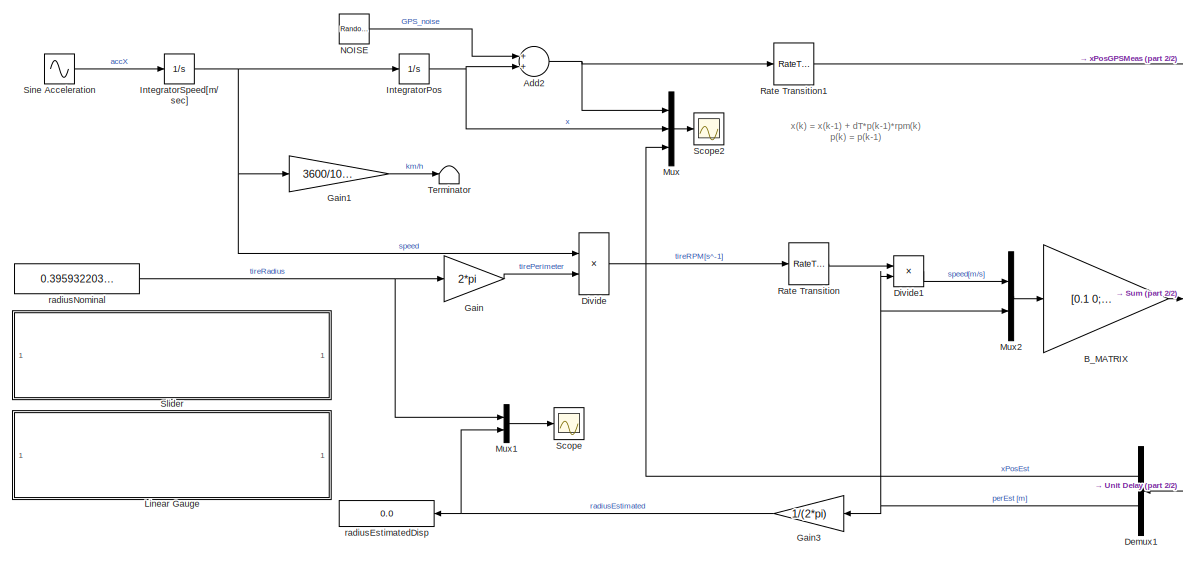
[diagram: root canvas - part 1/2, center side, full height]
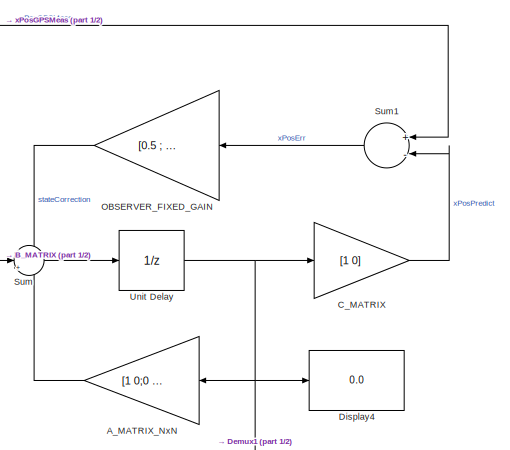
[diagram: root canvas - part 2/2, right side, full height]
MODEL slx_e75d9908215d
KIND model
BLOCK [Gain] A_MATRIX_NxN
  Gain = [1 0;0 0]
  Multiplication = Matrix(K*u)
  OutDataTypeStr = Inherit: Inherit via internal rule
  ParamDataTypeStr = Inherit: Inherit via internal rule
  SaturateOnIntegerOverflow = off
BLOCK [Sum] Add2
  InputSameDT = off
  OutDataTypeStr = Inherit: Inherit via internal rule
  Ports = [2, 1]
  SaturateOnIntegerOverflow = off
BLOCK [Gain] B_MATRIX
  Gain = [0.1 0; 0 1]'
  Multiplication = Matrix(K*u)
  OutDataTypeStr = Inherit: Inherit via internal rule
  ParamDataTypeStr = Inherit: Inherit via internal rule
  SaturateOnIntegerOverflow = off
BLOCK [Gain] C_MATRIX
  Gain = [1 0]
  Multiplication = Matrix(K*u)
  OutDataTypeStr = Inherit: Inherit via internal rule
  ParamDataTypeStr = Inherit: Inherit via internal rule
  SaturateOnIntegerOverflow = off
BLOCK [Demux] Demux1
  DisplayOption = bar
  Outputs = 2
  Ports = [1, 2]
BLOCK [Display] Display4
  Decimation = 1
  Ports = [1]
BLOCK [Product] Divide
  InputSameDT = off
  Inputs = */
  OutDataTypeStr = Inherit: Inherit via internal rule
  Ports = [2, 1]
  RndMeth = Floor
  SaturateOnIntegerOverflow = off
BLOCK [Product] Divide1
  InputSameDT = off
  Inputs = **
  OutDataTypeStr = Inherit: Inherit via internal rule
  Ports = [2, 1]
  RndMeth = Floor
  SaturateOnIntegerOverflow = off
BLOCK [Gain] Gain
  Gain = 2*pi
  OutDataTypeStr = Inherit: Inherit via internal rule
  ParamDataTypeStr = Inherit: Inherit via internal rule
  SaturateOnIntegerOverflow = off
BLOCK [Gain] Gain1
  Commented = on
  Gain = 3600/1000
  OutDataTypeStr = Inherit: Inherit via internal rule
  ParamDataTypeStr = Inherit: Inherit via internal rule
  SaturateOnIntegerOverflow = off
BLOCK [Gain] Gain3
  Gain = 1/(2*pi)
  OutDataTypeStr = Inherit: Inherit via internal rule
  ParamDataTypeStr = Inherit: Inherit via internal rule
  SaturateOnIntegerOverflow = off
BLOCK [Integrator] IntegratorPos
  Ports = [1, 1]
BLOCK [Integrator] IntegratorSpeed[m//sec]
  Ports = [1, 1]
BLOCK [SubSystem] Linear Gauge
  Description = Replaced Block
  Ports = []
  RequestExecContextInheritance = off
  Variant = off
BLOCK [Mux] Mux
  DisplayOption = bar
  Inputs = 3
  Ports = [3, 1]
BLOCK [Mux] Mux1
  DisplayOption = bar
  Inputs = 2
  Ports = [2, 1]
BLOCK [Mux] Mux2
  DisplayOption = bar
  Inputs = 2
  Ports = [2, 1]
BLOCK [RandomNumber] NOISE
  SampleTime = 0.1
  Variance = 2000
BLOCK [Gain] OBSERVER_FIXED_GAIN
  Gain = [0.5 ; 0.0001]
  Multiplication = Matrix(K*u)
  OutDataTypeStr = Inherit: Inherit via internal rule
  ParamDataTypeStr = Inherit: Inherit via internal rule
  SaturateOnIntegerOverflow = off
BLOCK [RateTransition] Rate Transition
  OutPortSampleTime = 0.1
BLOCK [RateTransition] Rate Transition1
  OutPortSampleTime = 0.1
BLOCK [Scope] Scope
  DataFormat = StructureWithTime
  Decimation = 1
  Grid = on
  LimitDataPoints = off
  MaxDataPoints = 5000
  NumInputPorts = 1
  Ports = [1]
  SampleInput = off
  SampleTime = -1
  SaveName = ScopeData1
  SaveToWorkspace = off
  ShowLegends = off
  TickLabels = OneTimeTick
  TimeRange = 50000
  YMax = 1
  YMin = 0
  ZoomMode = on
BLOCK [Scope] Scope2
  DataFormat = StructureWithTime
  Decimation = 1
  Grid = on
  LimitDataPoints = on
  MaxDataPoints = 500000
  NumInputPorts = 1
  Ports = [1]
  SampleInput = off
  SampleTime = -1
  SaveName = ScopeData2
  SaveToWorkspace = off
  ShowLegends = off
  TickLabels = OneTimeTick
  TimeRange = auto
  YMax = 4378100.40264
  YMin = 3298872.55351
  ZoomMode = on
BLOCK [Sin] Sine Acceleration
  Amplitude = 0.03
  Frequency = 2*pi*(1/3600)
  Ports = [0, 1]
BLOCK [SubSystem] Slider
  Description = Replaced Block
  Ports = []
  RequestExecContextInheritance = off
  Variant = off
BLOCK [Sum] Sum
  AccumDataTypeStr = Inherit: Same as first input
  IconShape = round
  InputSameDT = off
  Inputs = +|+|+
  OutDataTypeStr = Inherit: Inherit via internal rule
  Ports = [3, 1]
  SaturateOnIntegerOverflow = off
BLOCK [Sum] Sum1
  AccumDataTypeStr = Inherit: Same as first input
  InputSameDT = off
  Inputs = +-|
  OutDataTypeStr = Inherit: Inherit via internal rule
  Ports = [2, 1]
  SaturateOnIntegerOverflow = off
BLOCK [Terminator] Terminator
  Commented = on
BLOCK [UnitDelay] Unit Delay
  InitialCondition = [1000 2]
  InputProcessing = Elements as channels (sample based)
  SampleTime = -1
BLOCK [Display] radiusEstimatedDisp
  Decimation = 1
  Ports = [1]
BLOCK [Constant] radiusNominal
  Value = 0.3959322033898
ANNOTATION (root): x(k) = x(k-1) + dT*p(k-1)*rpm(k) p(k) = p(k-1)
LINE A_MATRIX_NxN:1 -> Sum:3
NET Add2:1 -> Mux:1, Rate Transition1:1
LINE B_MATRIX:1 -> Sum:2
LINE C_MATRIX:1 -> Sum1:2
LINE Demux1:1 -> Mux:3
NET Demux1:2 -> Divide1:2, Gain3:1, Mux2:2
LINE Divide1:1 -> Mux2:1
LINE Divide:1 -> Rate Transition:1
LINE Gain1:1 -> Terminator:1
NET Gain3:1 -> Mux1:2, radiusEstimatedDisp:1
LINE Gain:1 -> Divide:2
NET IntegratorPos:1 -> Add2:2, Mux:2
NET IntegratorSpeed[m//sec]:1 -> Divide:1, Gain1:1, IntegratorPos:1
LINE Mux1:1 -> Scope:1
LINE Mux2:1 -> B_MATRIX:1
LINE Mux:1 -> Scope2:1
LINE NOISE:1 -> Add2:1
LINE OBSERVER_FIXED_GAIN:1 -> Sum:1
LINE Rate Transition1:1 -> Sum1:1
LINE Rate Transition:1 -> Divide1:1
LINE Sine Acceleration:1 -> IntegratorSpeed[m//sec]:1
LINE Sum1:1 -> OBSERVER_FIXED_GAIN:1
LINE Sum:1 -> Unit Delay:1
NET Unit Delay:1 -> A_MATRIX_NxN:1, C_MATRIX:1, Demux1:1, Display4:1
NET radiusNominal:1 -> Gain:1, Mux1:1
note: NET lines group one-source signal fan-out (src -> all destinations, sorted); 1:1 wires keep LINE
